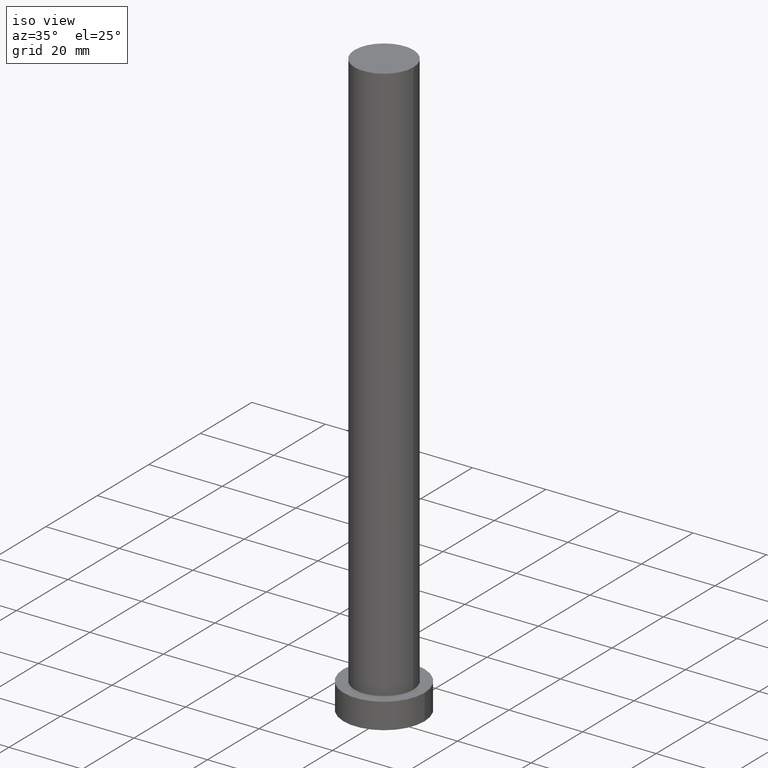
[diagram: clean part render]
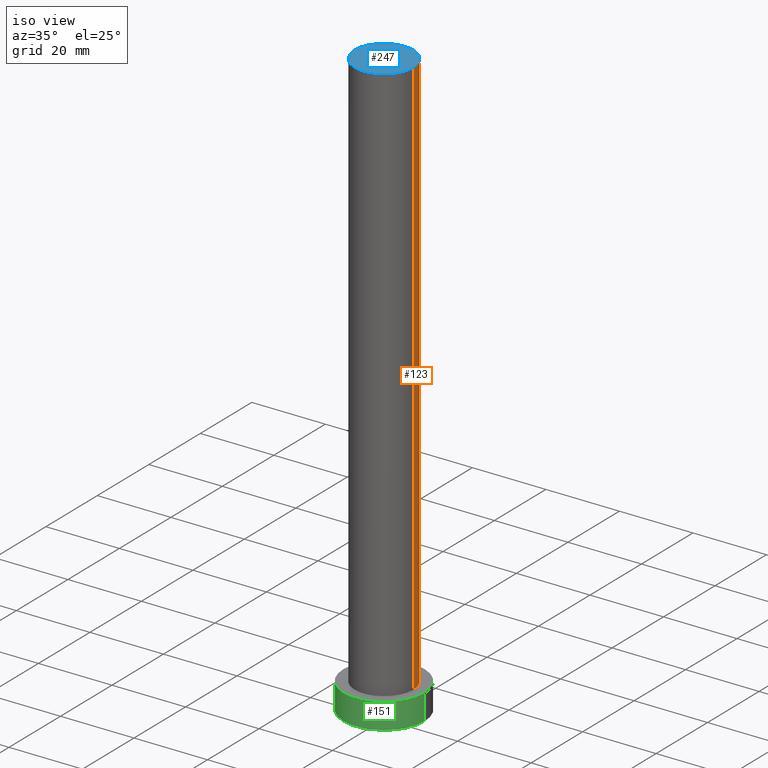
[diagram: same view with three faces highlighted in distinct colors, each labeled with its STEP entity id]
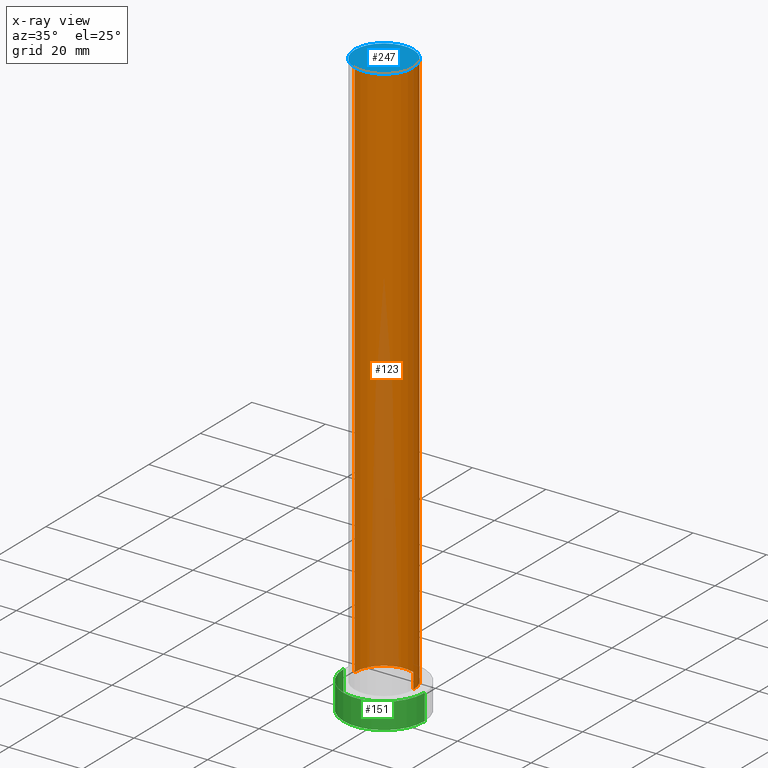
[diagram: x-ray of the same camera — body ghosted, the three highlighted faces saturated]
A machine part, iso view with three faces highlighted in distinct colors.
The next image is the same camera in x-ray (body ghosted, the three faces saturated) — at least one of them is partly hidden behind the body in this view.
Their STEP definitions:

[orange] entity #123 — the highlighted cylindrical surface (edge-blend (fillet) strip) has radius 8 mm, axis along (-0, -0, -1).
#11 = DIRECTION ( 'NONE',  ( 1.000000000000000000, 0.000000000000000000, 0.000000000000000000 ) ) ;
#15 = DIRECTION ( 'NONE',  ( -0.000000000000000000, -0.000000000000000000, -1.000000000000000000 ) ) ;
#22 = VECTOR ( 'NONE', #129, 1000.000000000000000 ) ;
#36 = VERTEX_POINT ( 'NONE', #101 ) ;
#37 = VERTEX_POINT ( 'NONE', #103 ) ;
#42 = CARTESIAN_POINT ( 'NONE',  ( 0.000000000000000000, 0.000000000000000000, 160.0000000000000000 ) ) ;
#46 = VERTEX_POINT ( 'NONE', #65 ) ;
#48 = EDGE_CURVE ( 'NONE', #36, #79, #113, .T. ) ;
#52 = DIRECTION ( 'NONE',  ( 1.000000000000000000, 0.000000000000000000, 0.000000000000000000 ) ) ;
#65 = CARTESIAN_POINT ( 'NONE',  ( 8.000000000000000000, 9.797174393178825657E-16, 7.000000000000000000 ) ) ;
#70 = FACE_OUTER_BOUND ( 'NONE', #178, .T. ) ;
#72 = LINE ( 'NONE', #216, #22 ) ;
#79 = VERTEX_POINT ( 'NONE', #108 ) ;
#81 = CIRCLE ( 'NONE', #235, 8.000000000000000000 ) ;
#101 = CARTESIAN_POINT ( 'NONE',  ( 8.000000000000000000, 9.797174393178825657E-16, 160.0000000000000000 ) ) ;
#103 = CARTESIAN_POINT ( 'NONE',  ( -8.000000000000000000, 0.000000000000000000, 7.000000000000000000 ) ) ;
#108 = CARTESIAN_POINT ( 'NONE',  ( -8.000000000000000000, 0.000000000000000000, 160.0000000000000000 ) ) ;
#113 = CIRCLE ( 'NONE', #180, 8.000000000000000000 ) ;
#121 = DIRECTION ( 'NONE',  ( -0.000000000000000000, -0.000000000000000000, -1.000000000000000000 ) ) ;
#123 = ADVANCED_FACE ( 'NONE', ( #70 ), #163, .T. ) ;
#125 = CARTESIAN_POINT ( 'NONE',  ( 0.000000000000000000, 0.000000000000000000, 160.0000000000000000 ) ) ;
#127 = CARTESIAN_POINT ( 'NONE',  ( -8.000000000000000000, 0.000000000000000000, 160.0000000000000000 ) ) ;
#128 = CARTESIAN_POINT ( 'NONE',  ( 0.000000000000000000, 0.000000000000000000, 7.000000000000000000 ) ) ;
#129 = DIRECTION ( 'NONE',  ( -0.000000000000000000, -0.000000000000000000, -1.000000000000000000 ) ) ;
#149 = LINE ( 'NONE', #127, #189 ) ;
#162 = ORIENTED_EDGE ( 'NONE', *, *, #179, .F. ) ;
#163 = CYLINDRICAL_SURFACE ( 'NONE', #193, 8.000000000000000000 ) ;
#176 = ORIENTED_EDGE ( 'NONE', *, *, #200, .T. ) ;
#178 = EDGE_LOOP ( 'NONE', ( #241, #221, #176, #162 ) ) ;
#179 = EDGE_CURVE ( 'NONE', #79, #37, #149, .T. ) ;
#180 = AXIS2_PLACEMENT_3D ( 'NONE', #125, #249, #11 ) ;
#189 = VECTOR ( 'NONE', #15, 1000.000000000000000 ) ;
#193 = AXIS2_PLACEMENT_3D ( 'NONE', #42, #121, #227 ) ;
#200 = EDGE_CURVE ( 'NONE', #46, #37, #81, .T. ) ;
#214 = EDGE_CURVE ( 'NONE', #36, #46, #72, .T. ) ;
#216 = CARTESIAN_POINT ( 'NONE',  ( 8.000000000000000000, 9.797174393178825657E-16, 160.0000000000000000 ) ) ;
#221 = ORIENTED_EDGE ( 'NONE', *, *, #214, .T. ) ;
#227 = DIRECTION ( 'NONE',  ( -1.000000000000000000, 0.000000000000000000, 0.000000000000000000 ) ) ;
#231 = DIRECTION ( 'NONE',  ( 0.000000000000000000, 0.000000000000000000, 1.000000000000000000 ) ) ;
#235 = AXIS2_PLACEMENT_3D ( 'NONE', #128, #231, #52 ) ;
#241 = ORIENTED_EDGE ( 'NONE', *, *, #48, .F. ) ;
#249 = DIRECTION ( 'NONE',  ( 0.000000000000000000, 0.000000000000000000, 1.000000000000000000 ) ) ;

[blue] entity #247 — the highlighted planar face has unit normal (0, 0, 1).
#6 = DIRECTION ( 'NONE',  ( 0.000000000000000000, 0.000000000000000000, 1.000000000000000000 ) ) ;
#11 = DIRECTION ( 'NONE',  ( 1.000000000000000000, 0.000000000000000000, 0.000000000000000000 ) ) ;
#17 = EDGE_CURVE ( 'NONE', #79, #36, #147, .T. ) ;
#36 = VERTEX_POINT ( 'NONE', #101 ) ;
#40 = CARTESIAN_POINT ( 'NONE',  ( 0.000000000000000000, 0.000000000000000000, 160.0000000000000000 ) ) ;
#48 = EDGE_CURVE ( 'NONE', #36, #79, #113, .T. ) ;
#79 = VERTEX_POINT ( 'NONE', #108 ) ;
#101 = CARTESIAN_POINT ( 'NONE',  ( 8.000000000000000000, 9.797174393178825657E-16, 160.0000000000000000 ) ) ;
#108 = CARTESIAN_POINT ( 'NONE',  ( -8.000000000000000000, 0.000000000000000000, 160.0000000000000000 ) ) ;
#112 = DIRECTION ( 'NONE',  ( 1.000000000000000000, 0.000000000000000000, -0.000000000000000000 ) ) ;
#113 = CIRCLE ( 'NONE', #180, 8.000000000000000000 ) ;
#122 = EDGE_LOOP ( 'NONE', ( #156, #226 ) ) ;
#125 = CARTESIAN_POINT ( 'NONE',  ( 0.000000000000000000, 0.000000000000000000, 160.0000000000000000 ) ) ;
#131 = PLANE ( 'NONE',  #252 ) ;
#141 = AXIS2_PLACEMENT_3D ( 'NONE', #40, #6, #206 ) ;
#147 = CIRCLE ( 'NONE', #141, 8.000000000000000000 ) ;
#156 = ORIENTED_EDGE ( 'NONE', *, *, #17, .T. ) ;
#171 = CARTESIAN_POINT ( 'NONE',  ( 0.000000000000000000, 0.000000000000000000, 160.0000000000000000 ) ) ;
#180 = AXIS2_PLACEMENT_3D ( 'NONE', #125, #249, #11 ) ;
#192 = FACE_OUTER_BOUND ( 'NONE', #122, .T. ) ;
#206 = DIRECTION ( 'NONE',  ( 1.000000000000000000, 0.000000000000000000, 0.000000000000000000 ) ) ;
#217 = DIRECTION ( 'NONE',  ( 0.000000000000000000, 0.000000000000000000, 1.000000000000000000 ) ) ;
#226 = ORIENTED_EDGE ( 'NONE', *, *, #48, .T. ) ;
#247 = ADVANCED_FACE ( 'NONE', ( #192 ), #131, .T. ) ;
#249 = DIRECTION ( 'NONE',  ( 0.000000000000000000, 0.000000000000000000, 1.000000000000000000 ) ) ;
#252 = AXIS2_PLACEMENT_3D ( 'NONE', #171, #217, #112 ) ;

[green] entity #151 — the highlighted cylindrical surface (partial cylindrical patch) has radius 11 mm, axis along (-0, -0, -1).
#14 = CARTESIAN_POINT ( 'NONE',  ( 11.00000000000000000, 1.347111479062088405E-15, 0.000000000000000000 ) ) ;
#19 = ORIENTED_EDGE ( 'NONE', *, *, #203, .F. ) ;
#24 = EDGE_LOOP ( 'NONE', ( #116, #19, #164, #195 ) ) ;
#29 = LINE ( 'NONE', #213, #219 ) ;
#31 = LINE ( 'NONE', #150, #215 ) ;
#33 = CARTESIAN_POINT ( 'NONE',  ( 0.000000000000000000, 0.000000000000000000, 7.000000000000000000 ) ) ;
#34 = EDGE_CURVE ( 'NONE', #222, #54, #97, .T. ) ;
#50 = DIRECTION ( 'NONE',  ( -1.000000000000000000, 0.000000000000000000, 0.000000000000000000 ) ) ;
#54 = VERTEX_POINT ( 'NONE', #14 ) ;
#58 = AXIS2_PLACEMENT_3D ( 'NONE', #202, #188, #242 ) ;
#68 = VERTEX_POINT ( 'NONE', #246 ) ;
#74 = CARTESIAN_POINT ( 'NONE',  ( -11.00000000000000000, 0.000000000000000000, 0.000000000000000000 ) ) ;
#75 = DIRECTION ( 'NONE',  ( -0.000000000000000000, -0.000000000000000000, -1.000000000000000000 ) ) ;
#88 = DIRECTION ( 'NONE',  ( -0.000000000000000000, -0.000000000000000000, -1.000000000000000000 ) ) ;
#90 = DIRECTION ( 'NONE',  ( -0.000000000000000000, -0.000000000000000000, -1.000000000000000000 ) ) ;
#91 = CARTESIAN_POINT ( 'NONE',  ( 0.000000000000000000, 0.000000000000000000, 7.000000000000000000 ) ) ;
#97 = CIRCLE ( 'NONE', #58, 11.00000000000000000 ) ;
#106 = AXIS2_PLACEMENT_3D ( 'NONE', #33, #109, #168 ) ;
#109 = DIRECTION ( 'NONE',  ( 0.000000000000000000, 0.000000000000000000, 1.000000000000000000 ) ) ;
#110 = CIRCLE ( 'NONE', #106, 11.00000000000000000 ) ;
#116 = ORIENTED_EDGE ( 'NONE', *, *, #185, .F. ) ;
#150 = CARTESIAN_POINT ( 'NONE',  ( 11.00000000000000000, 1.347111479062088405E-15, 7.000000000000000000 ) ) ;
#151 = ADVANCED_FACE ( 'NONE', ( #182 ), #250, .T. ) ;
#164 = ORIENTED_EDGE ( 'NONE', *, *, #254, .T. ) ;
#168 = DIRECTION ( 'NONE',  ( 1.000000000000000000, 0.000000000000000000, 0.000000000000000000 ) ) ;
#182 = FACE_OUTER_BOUND ( 'NONE', #24, .T. ) ;
#185 = EDGE_CURVE ( 'NONE', #68, #54, #31, .T. ) ;
#188 = DIRECTION ( 'NONE',  ( 0.000000000000000000, 0.000000000000000000, 1.000000000000000000 ) ) ;
#195 = ORIENTED_EDGE ( 'NONE', *, *, #34, .T. ) ;
#202 = CARTESIAN_POINT ( 'NONE',  ( 0.000000000000000000, 0.000000000000000000, 0.000000000000000000 ) ) ;
#203 = EDGE_CURVE ( 'NONE', #237, #68, #110, .T. ) ;
#212 = CARTESIAN_POINT ( 'NONE',  ( -11.00000000000000000, 0.000000000000000000, 7.000000000000000000 ) ) ;
#213 = CARTESIAN_POINT ( 'NONE',  ( -11.00000000000000000, 0.000000000000000000, 7.000000000000000000 ) ) ;
#215 = VECTOR ( 'NONE', #88, 1000.000000000000000 ) ;
#219 = VECTOR ( 'NONE', #90, 1000.000000000000000 ) ;
#222 = VERTEX_POINT ( 'NONE', #74 ) ;
#237 = VERTEX_POINT ( 'NONE', #212 ) ;
#242 = DIRECTION ( 'NONE',  ( 1.000000000000000000, 0.000000000000000000, 0.000000000000000000 ) ) ;
#245 = AXIS2_PLACEMENT_3D ( 'NONE', #91, #75, #50 ) ;
#246 = CARTESIAN_POINT ( 'NONE',  ( 11.00000000000000000, 1.347111479062088405E-15, 7.000000000000000000 ) ) ;
#250 = CYLINDRICAL_SURFACE ( 'NONE', #245, 11.00000000000000000 ) ;
#254 = EDGE_CURVE ( 'NONE', #237, #222, #29, .T. ) ;